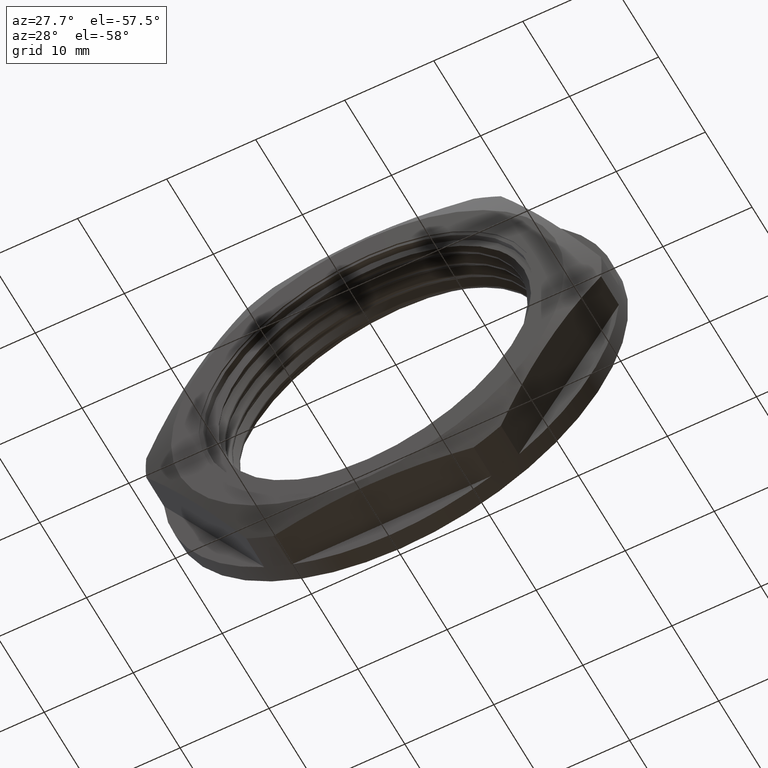
[diagram: clean part render]
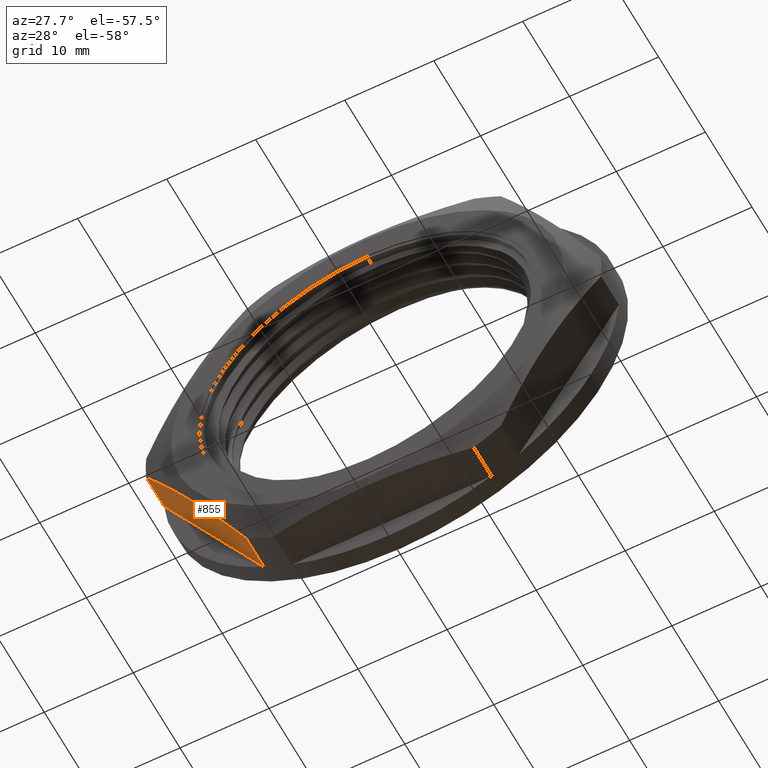
[diagram: same view with one face highlighted and labeled with its STEP entity id]
A machine part, auxiliary view. The second image highlights one B-rep face of the part: STEP entity #855.
In plain terms, the highlighted planar face has unit normal (-0.866, 0, -0.5).
Its self-contained STEP definition (entity closure, byte-faithful):
#147 = AXIS2_PLACEMENT_3D ( 'NONE', #2329, #2333, #2328 ) ;
#257 = VECTOR ( 'NONE', #1636, 1000.000000000000000 ) ;
#281 = VECTOR ( 'NONE', #362, 1000.000000000000100 ) ;
#300 = VECTOR ( 'NONE', #446, 1000.000000000000000 ) ;
#359 = CARTESIAN_POINT ( 'NONE',  ( -14.96132950238554200, -31.89999999999999900, -20.08621715308905200 ) ) ;
#362 = DIRECTION ( 'NONE',  ( 0.5000000000000004400, 0.0000000000000000000, -0.8660254037844383700 ) ) ;
#384 = LINE ( 'NONE', #359, #281 ) ;
#408 = CARTESIAN_POINT ( 'NONE',  ( -25.53908248560064500, -37.00000000000000000, -1.765011556247262100 ) ) ;
#424 = LINE ( 'NONE', #408, #300 ) ;
#446 = DIRECTION ( 'NONE',  ( -0.0000000000000000000, -1.000000000000000000, -0.0000000000000000000 ) ) ;
#470 = CARTESIAN_POINT ( 'NONE',  ( -14.29808608848352600, -35.71761219396795900, -21.23498844375277600 ) ) ;
#485 = CARTESIAN_POINT ( 'NONE',  ( -14.29808608848352800, -31.89999999999999900, -21.23498844375277300 ) ) ;
#496 = CARTESIAN_POINT ( 'NONE',  ( -25.53908248560255200, -35.71761219396304200, -1.765011556219709500 ) ) ;
#497 = CARTESIAN_POINT ( 'NONE',  ( -25.53908248560064800, -31.89999999999999900, -1.765011556247246600 ) ) ;
#788 = ORIENTED_EDGE ( 'NONE', *, *, #907, .T. ) ;
#790 = ORIENTED_EDGE ( 'NONE', *, *, #945, .T. ) ;
#817 = ORIENTED_EDGE ( 'NONE', *, *, #982, .F. ) ;
#820 = ORIENTED_EDGE ( 'NONE', *, *, #980, .T. ) ;
#855 = ADVANCED_FACE ( 'NONE', ( #2331 ), #2326, .T. ) ;
#907 = EDGE_CURVE ( 'NONE', #1136, #1127, #1221, .T. ) ;
#945 = EDGE_CURVE ( 'NONE', #1125, #1136, #1653, .T. ) ;
#980 = EDGE_CURVE ( 'NONE', #1130, #1125, #384, .T. ) ;
#982 = EDGE_CURVE ( 'NONE', #1130, #1127, #424, .T. ) ;
#1125 = VERTEX_POINT ( 'NONE', #485 ) ;
#1127 = VERTEX_POINT ( 'NONE', #496 ) ;
#1130 = VERTEX_POINT ( 'NONE', #497 ) ;
#1136 = VERTEX_POINT ( 'NONE', #470 ) ;
#1221 = B_SPLINE_CURVE_WITH_KNOTS ( 'NONE', 3,
 ( #1282, #1314, #1323, #1286, #1316, #1284, #1325, #1285, #1299, #1313, #1287, #1308, #1279 ),
 .UNSPECIFIED., .F., .F.,
 ( 4, 2, 2, 1, 2, 2, 4 ),
 ( -0.001445990239411276700, 0.001364997063227872300, 0.004175984365867021300, 0.009797958971145303800, 0.01541993357642359000, 0.01823092087906273300, 0.02104190818170187000 ),
 .UNSPECIFIED. ) ;
#1279 = CARTESIAN_POINT ( 'NONE',  ( -25.53908248560255200, -35.71761219396304200, -1.765011556219709500 ) ) ;
#1282 = CARTESIAN_POINT ( 'NONE',  ( -14.29808608848352600, -35.71761219396795900, -21.23498844375277600 ) ) ;
#1284 = CARTESIAN_POINT ( 'NONE',  ( -18.04459275195561200, -36.57943335988672800, -14.74584855172379400 ) ) ;
#1285 = CARTESIAN_POINT ( 'NONE',  ( -21.79257582214113100, -36.57943335988523600, -8.254151448254475600 ) ) ;
#1286 = CARTESIAN_POINT ( 'NONE',  ( -16.17060121686284200, -36.23638297811884700, -17.99169710345845300 ) ) ;
#1287 = CARTESIAN_POINT ( 'NONE',  ( -24.60356312478027600, -36.00158386829224400, -3.385378620652487000 ) ) ;
#1299 = CARTESIAN_POINT ( 'NONE',  ( -23.19806947346070200, -36.33650146985102900, -5.819765034453483000 ) ) ;
#1308 = CARTESIAN_POINT ( 'NONE',  ( -25.07247182657063400, -35.86675948256010600, -2.573204925040427400 ) ) ;
#1313 = CARTESIAN_POINT ( 'NONE',  ( -23.66656735723389800, -36.23638297811599800, -5.008302896519817100 ) ) ;
#1314 = CARTESIAN_POINT ( 'NONE',  ( -14.76469674752608600, -35.86675948256387200, -20.42679507493787500 ) ) ;
#1316 = CARTESIAN_POINT ( 'NONE',  ( -16.63909910063603100, -36.33650146985351600, -17.18023496552478900 ) ) ;
#1323 = CARTESIAN_POINT ( 'NONE',  ( -15.23360544931645700, -36.00158386829571100, -19.61462137932577900 ) ) ;
#1325 = CARTESIAN_POINT ( 'NONE',  ( -19.91858428704836800, -36.74843624623415600, -11.49999999998912900 ) ) ;
#1636 = DIRECTION ( 'NONE',  ( -0.0000000000000000000, -1.000000000000000000, -0.0000000000000000000 ) ) ;
#1653 = LINE ( 'NONE', #1664, #257 ) ;
#1664 = CARTESIAN_POINT ( 'NONE',  ( -14.29808608848353800, -37.00000000000000000, -21.23498844375276600 ) ) ;
#2326 = PLANE ( 'NONE',  #147 ) ;
#2328 = DIRECTION ( 'NONE',  ( -0.5000000000000004400, 0.0000000000000000000, 0.8660254037844383700 ) ) ;
#2329 = CARTESIAN_POINT ( 'NONE',  ( -14.96132950238554200, -37.00000000000000000, -20.08621715308905200 ) ) ;
#2331 = FACE_OUTER_BOUND ( 'NONE', #2505, .T. ) ;
#2333 = DIRECTION ( 'NONE',  ( -0.8660254037844383700, 0.0000000000000000000, -0.5000000000000004400 ) ) ;
#2505 = EDGE_LOOP ( 'NONE', ( #817, #820, #790, #788 ) ) ;